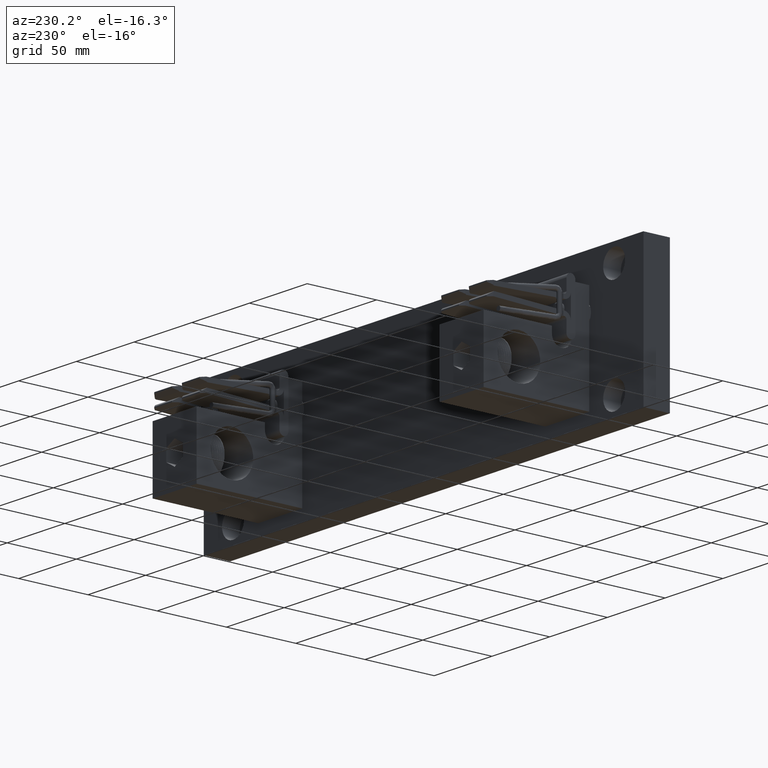
[diagram: clean part render]
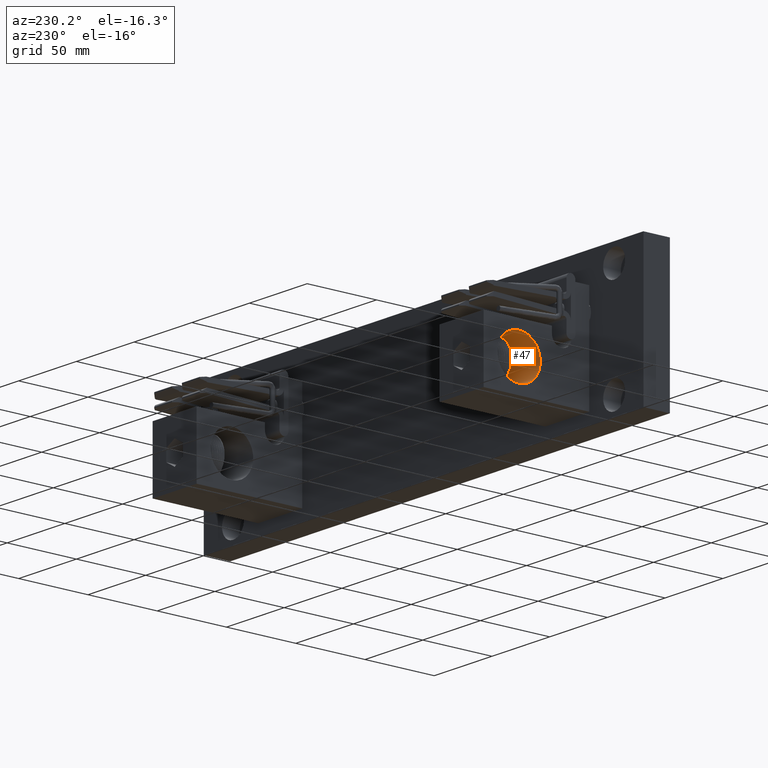
[diagram: same view with one face highlighted and labeled with its STEP entity id]
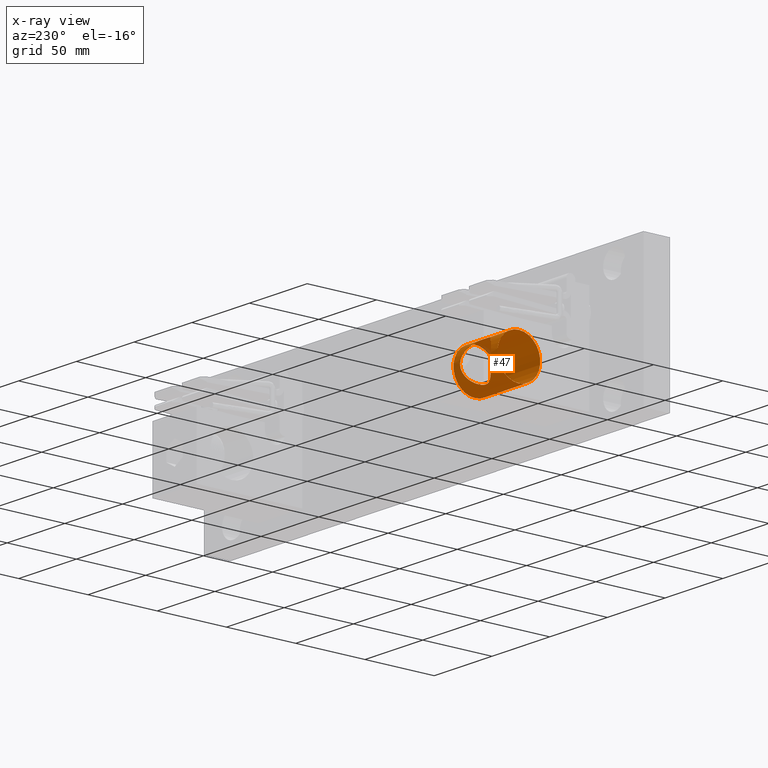
[diagram: x-ray of the same camera — body ghosted, the highlighted face saturated]
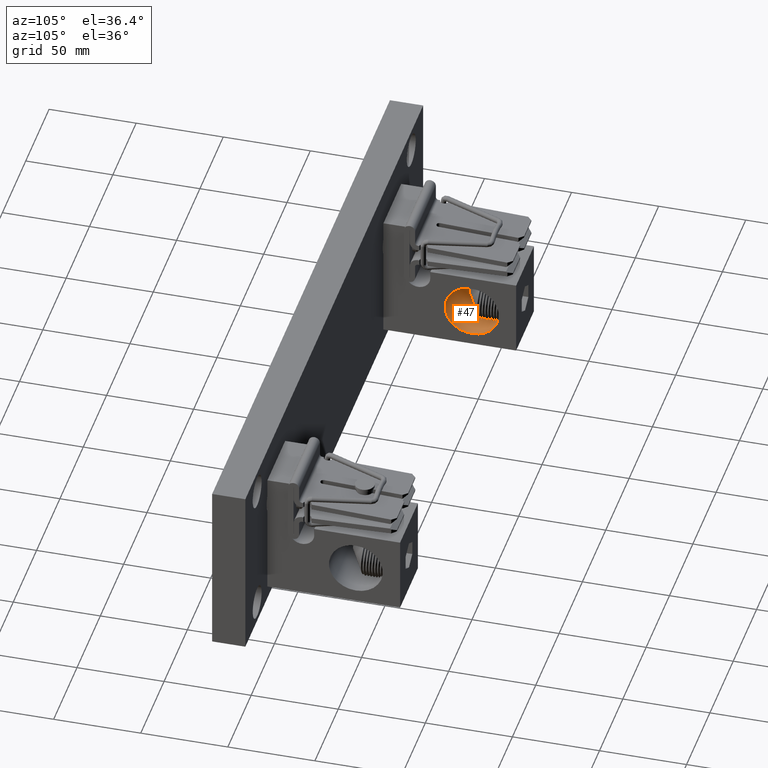
[diagram: same view with one face highlighted and labeled with its STEP entity id]
A machine part, auxiliary view. The second image highlights one B-rep face of the part: STEP entity #47.
The next image is the same camera in x-ray: the body ghosted, the highlighted face saturated — about 1% of this face is hidden behind the body in this view.
A second angle (auxiliary view) of the same face is appended — the face is thin or edge-on in the first view.
In plain terms, the highlighted cylindrical surface (bore or boss wall) has radius 15.4686 mm, axis along (-1, -0, 0).
Its self-contained STEP definition (entity closure, byte-faithful):
#23 = CARTESIAN_POINT ( 'NONE',  ( -0.5083903760251994300, 2.096102412120274900, -1.500965891169425200 ) ) ;
#47 = ADVANCED_FACE ( 'NONE', ( #27451, #10602, #15514 ), #7689, .F. ) ;
#120 = CARTESIAN_POINT ( 'NONE',  ( -0.3040232202170619600, 1.934990048804267700, -1.801411328152655400 ) ) ;
#1238 = CARTESIAN_POINT ( 'NONE',  ( 0.03703607803150976700, 1.812950835973183800, -1.897452140939298100 ) ) ;
#1339 = CARTESIAN_POINT ( 'NONE',  ( 0.4089202243638875900, 2.013861333578022900, -1.702193664357926700 ) ) ;
#1431 = CARTESIAN_POINT ( 'NONE',  ( 0.5184589148340126300, 2.104714970127614700, -1.302303516476783300 ) ) ;
#1526 = CARTESIAN_POINT ( 'NONE',  ( 0.3422328782772948200, 1.962364658960770400, -0.9776191655282175900 ) ) ;
#1574 = DIRECTION ( 'NONE',  ( 2.242896546522384600E-016, 0.0000000000000000000, 1.000000000000000000 ) ) ;
#1618 = CARTESIAN_POINT ( 'NONE',  ( 0.03693958694551607200, 1.813306831308582100, -0.8527732884213822300 ) ) ;
#2108 = CARTESIAN_POINT ( 'NONE',  ( -0.2352788112888216100, 1.889356783935037100, -0.9062514264342225200 ) ) ;
#2195 = CARTESIAN_POINT ( 'NONE',  ( -0.4920812681368250700, 2.082251220991547100, -1.195631627133866500 ) ) ;
#2224 = CARTESIAN_POINT ( 'NONE',  ( 0.7499999999999993300, 1.499999999999999800, -1.375000000000000000 ) ) ;
#2293 = CARTESIAN_POINT ( 'NONE',  ( -0.4926919576583562700, 2.082767437310098800, -1.552705597392537000 ) ) ;
#2387 = CARTESIAN_POINT ( 'NONE',  ( -0.2359406998527561500, 1.889766126412529800, -1.843407341791487800 ) ) ;
#2843 = EDGE_CURVE ( 'NONE', #3895, #3895, #17731, .T. ) ;
#3508 = CARTESIAN_POINT ( 'NONE',  ( 0.09082710076918358600, 1.823825352755908500, -1.890813781242951300 ) ) ;
#3611 = CARTESIAN_POINT ( 'NONE',  ( 0.4477203328357768400, 2.045168269973868000, -1.648230773953768700 ) ) ;
#3706 = CARTESIAN_POINT ( 'NONE',  ( 0.5139214688143697300, 2.100828939997650300, -1.275165215486350600 ) ) ;
#3809 = CARTESIAN_POINT ( 'NONE',  ( 0.2773335335710179200, 1.916772626162445400, -0.9307649896137126800 ) ) ;
#3895 = VERTEX_POINT ( 'NONE', #20763 ) ;
#3906 = CARTESIAN_POINT ( 'NONE',  ( 0.009280635462770615900, 1.811260116634076700, -0.8515516837321172000 ) ) ;
#4434 = CARTESIAN_POINT ( 'NONE',  ( -0.3032884347808445500, 1.934477017025518800, -0.9480676338777428400 ) ) ;
#4526 = CARTESIAN_POINT ( 'NONE',  ( -0.5029367590460089900, 2.091460013751301500, -1.229616698176384700 ) ) ;
#4546 = DIRECTION ( 'NONE',  ( 2.242896546522383700E-016, 0.0000000000000000000, 1.000000000000000000 ) ) ;
#4618 = CARTESIAN_POINT ( 'NONE',  ( -0.4723362692807457900, 2.065657171131666500, -1.601282302107387900 ) ) ;
#4716 = CARTESIAN_POINT ( 'NONE',  ( -0.1751735993493179800, 1.856871451396173500, -1.868563828384568200 ) ) ;
#5825 = CARTESIAN_POINT ( 'NONE',  ( 0.1746726631392333800, 1.856022455920142100, -1.869542607008252800 ) ) ;
#5934 = CARTESIAN_POINT ( 'NONE',  ( 0.4930602189450356000, 2.083034517968976200, -1.554258277017967100 ) ) ;
#6036 = CARTESIAN_POINT ( 'NONE',  ( 0.5036200801718395700, 2.092035339655246200, -1.231176567592089800 ) ) ;
#6135 = CARTESIAN_POINT ( 'NONE',  ( 0.2350590817488683000, 1.889885770684363000, -0.9070169607372483600 ) ) ;
#6344 = EDGE_CURVE ( 'NONE', #11674, #11674, #26585, .T. ) ;
#6632 = CARTESIAN_POINT ( 'NONE',  ( -0.03656245611827512600, 1.812883834307803300, -0.8525075735982081700 ) ) ;
#6722 = CARTESIAN_POINT ( 'NONE',  ( -0.3412959797015970300, 1.961832882506711300, -0.9777884892052065600 ) ) ;
#6814 = CARTESIAN_POINT ( 'NONE',  ( -0.5098203397965033200, 2.097324770169593800, -1.255977167398702600 ) ) ;
#6892 = CARTESIAN_POINT ( 'NONE',  ( -0.4478014841724760600, 2.045330027291613300, -1.646601566682454900 ) ) ;
#6975 = AXIS2_PLACEMENT_3D ( 'NONE', #25291, #12138, #1574 ) ;
#6997 = CARTESIAN_POINT ( 'NONE',  ( -0.1258925378133687900, 1.835360832578287100, -1.883389140935380200 ) ) ;
#7689 = CYLINDRICAL_SURFACE ( 'NONE', #6975, 0.6089999999999996500 ) ;
#8124 = CARTESIAN_POINT ( 'NONE',  ( 0.2348784388870535900, 1.889776289595449700, -1.843074547681420800 ) ) ;
#8224 = CARTESIAN_POINT ( 'NONE',  ( 0.5155723889209008500, 2.102239204130067900, -1.467272621108469000 ) ) ;
#8319 = CARTESIAN_POINT ( 'NONE',  ( 0.4862946632064189500, 2.077363659359441800, -1.180511642204474400 ) ) ;
#8410 = CARTESIAN_POINT ( 'NONE',  ( 0.1903033337549837100, 1.864606734211519100, -0.8870929829268110500 ) ) ;
#8819 = CARTESIAN_POINT ( 'NONE',  ( 0.7499999999999995600, 1.499999999999999800, -0.7660000000000000100 ) ) ;
#8890 = CARTESIAN_POINT ( 'NONE',  ( -0.07295248068231645300, 1.819577241989803300, -0.8565808280470914600 ) ) ;
#8984 = CARTESIAN_POINT ( 'NONE',  ( -0.3880447606537895100, 1.997227208084749500, -1.022210476329403300 ) ) ;
#9080 = CARTESIAN_POINT ( 'NONE',  ( -0.5233571344588245900, 2.108920179919665300, -1.336854587295536200 ) ) ;
#9164 = CARTESIAN_POINT ( 'NONE',  ( -0.4098673553824110400, 2.014533919914875500, -1.702311844670034500 ) ) ;
#9256 = CARTESIAN_POINT ( 'NONE',  ( -0.07386858460181419700, 1.819396299210058700, -1.893537500722199300 ) ) ;
#10279 = CARTESIAN_POINT ( 'NONE',  ( -3.905688928441876100E-016, 1.811257285055306400, -1.898449999999999100 ) ) ;
#10382 = CARTESIAN_POINT ( 'NONE',  ( 0.2770436544694636600, 1.916581669018506500, -1.819410341866391400 ) ) ;
#10471 = CARTESIAN_POINT ( 'NONE',  ( 0.5224405266412712700, 2.108131723077257400, -1.412344847179439100 ) ) ;
#10565 = CARTESIAN_POINT ( 'NONE',  ( 0.4482717581314562000, 2.045619674513943700, -1.102636943290465500 ) ) ;
#10602 = FACE_OUTER_BOUND ( 'NONE', #18936, .T. ) ;
#10657 = CARTESIAN_POINT ( 'NONE',  ( 0.1423994102623176700, 1.841980958967212900, -0.8710055826933943400 ) ) ;
#10905 = ORIENTED_EDGE ( 'NONE', *, *, #26926, .F. ) ;
#11145 = CARTESIAN_POINT ( 'NONE',  ( -0.09939845272249466000, 1.826642790545077300, -0.8609993639652568900 ) ) ;
#11199 = CIRCLE ( 'NONE', #20645, 0.6089999999999999900 ) ;
#11237 = CARTESIAN_POINT ( 'NONE',  ( -0.4378626741009095700, 2.037190139223975700, -1.087680303542284800 ) ) ;
#11349 = CARTESIAN_POINT ( 'NONE',  ( -0.5225462936828181300, 2.108222631414179200, -1.410843202185360700 ) ) ;
#11432 = CARTESIAN_POINT ( 'NONE',  ( -0.3540718204206856900, 1.971372496849789700, -1.760866404997214900 ) ) ;
#11528 = CARTESIAN_POINT ( 'NONE',  ( -0.01870363385725834100, 1.811257285055306400, -1.898449999999999100 ) ) ;
#11674 = VERTEX_POINT ( 'NONE', #23193 ) ;
#12138 = DIRECTION ( 'NONE',  ( -1.000000000000000000, -3.835122127709274900E-017, 2.220446049250313100E-016 ) ) ;
#12154 = ORIENTED_EDGE ( 'NONE', *, *, #6344, .F. ) ;
#12633 = CARTESIAN_POINT ( 'NONE',  ( 0.3415595500875298600, 1.961863544495721500, -1.772969530909885600 ) ) ;
#12735 = CARTESIAN_POINT ( 'NONE',  ( 0.5234741387460258900, 2.109020747822006700, -1.357376117934729900 ) ) ;
#12831 = CARTESIAN_POINT ( 'NONE',  ( 0.4091534278411433900, 2.014047426531655000, -1.048101674319964900 ) ) ;
#12923 = CARTESIAN_POINT ( 'NONE',  ( 0.09111046162193804600, 1.823910601698980300, -0.8592402125663728400 ) ) ;
#13403 = CARTESIAN_POINT ( 'NONE',  ( -0.1417343574007566600, 1.841703424372292100, -0.8708177935374330500 ) ) ;
#13503 = CARTESIAN_POINT ( 'NONE',  ( -0.4638829326624355800, 2.058610361940258500, -1.131876949619344600 ) ) ;
#13603 = CARTESIAN_POINT ( 'NONE',  ( -0.5158834393936390100, 2.102505630132347000, -1.465512193281020900 ) ) ;
#13692 = CARTESIAN_POINT ( 'NONE',  ( -0.3170306883267132700, 1.944202337401932600, -1.791834356217676400 ) ) ;
#14774 = CARTESIAN_POINT ( 'NONE',  ( 0.01870363385725822700, 1.811257285055306400, -1.898449999999999100 ) ) ;
#14879 = CARTESIAN_POINT ( 'NONE',  ( 0.3875304231437535800, 1.997008600644645000, -1.727266397812511600 ) ) ;
#14884 = EDGE_LOOP ( 'NONE', ( #28311 ) ) ;
#14964 = CARTESIAN_POINT ( 'NONE',  ( 0.5196674598685011600, 2.105751702514753200, -1.311511933876268000 ) ) ;
#15077 = CARTESIAN_POINT ( 'NONE',  ( 0.3767974445647151400, 1.988673276408671900, -1.011293620774445000 ) ) ;
#15171 = CARTESIAN_POINT ( 'NONE',  ( 0.04621392308839140900, 1.814542161335162700, -0.8535139619554498200 ) ) ;
#15514 = FACE_BOUND ( 'NONE', #25478, .T. ) ;
#15658 = CARTESIAN_POINT ( 'NONE',  ( -0.1898919553698512600, 1.864390483379950300, -0.8869310415257160000 ) ) ;
#15750 = CARTESIAN_POINT ( 'NONE',  ( -0.4857715369159185100, 2.076923159088707400, -1.179220980598102400 ) ) ;
#15836 = CARTESIAN_POINT ( 'NONE',  ( -0.5037465842656166900, 2.092142839192565600, -1.518401615495036400 ) ) ;
#15929 = CARTESIAN_POINT ( 'NONE',  ( -0.2640402914699639400, 1.907699496602451600, -1.828111436417920300 ) ) ;
#16979 = CARTESIAN_POINT ( 'NONE',  ( 0.07305722421871932400, 1.819223922460242000, -1.893642991505205100 ) ) ;
#17086 = CARTESIAN_POINT ( 'NONE',  ( 0.4190489050613412900, 2.021968911426762300, -1.689125898501507200 ) ) ;
#17178 = CARTESIAN_POINT ( 'NONE',  ( 0.5155863258658463000, 2.102253939916893800, -1.284142057762348400 ) ) ;
#17279 = CARTESIAN_POINT ( 'NONE',  ( 0.3174627381817808300, 1.944163742256490800, -0.9575646929766300500 ) ) ;
#17375 = CARTESIAN_POINT ( 'NONE',  ( 0.01848644800200861500, 1.811670316553645900, -0.8517949516583472900 ) ) ;
#17731 = CIRCLE ( 'NONE', #25003, 0.6089999999999994300 ) ;
#17888 = CARTESIAN_POINT ( 'NONE',  ( -0.2633885896852175000, 1.907278616284581200, -0.9215165681285743000 ) ) ;
#17991 = CARTESIAN_POINT ( 'NONE',  ( -0.5003702010452086800, 2.089278617203079500, -1.221023262503957900 ) ) ;
#18015 = DIRECTION ( 'NONE',  ( -1.000000000000000000, -3.835122127709274900E-017, 2.220446049250313100E-016 ) ) ;
#18089 = CARTESIAN_POINT ( 'NONE',  ( -0.4863753281593554100, 2.077431765507187200, -1.569278850323322800 ) ) ;
#18184 = CARTESIAN_POINT ( 'NONE',  ( -0.1907515635020198300, 1.864841591607055500, -1.862731617612933400 ) ) ;
#18936 = EDGE_LOOP ( 'NONE', ( #10905 ) ) ;
#19290 = CARTESIAN_POINT ( 'NONE',  ( 0.1428001413995403100, 1.840883814953337700, -1.879838675948487100 ) ) ;
#19380 = CARTESIAN_POINT ( 'NONE',  ( 0.4645816425765906800, 2.059157377002533100, -1.618733064573549400 ) ) ;
#19478 = CARTESIAN_POINT ( 'NONE',  ( 0.5082672052565104800, 2.095997328484608500, -1.248533475616815400 ) ) ;
#19570 = CARTESIAN_POINT ( 'NONE',  ( 0.2634710880194901000, 1.907645871427264400, -0.9224031786147306500 ) ) ;
#19670 = CARTESIAN_POINT ( 'NONE',  ( -0.01827489863148302700, 1.811251665810572800, -0.8515466586474904600 ) ) ;
#20143 = CARTESIAN_POINT ( 'NONE',  ( -0.3161990634051230500, 1.943608513559267300, -0.9575337350514681000 ) ) ;
#20230 = CARTESIAN_POINT ( 'NONE',  ( -0.5076586228163898500, 2.095480345256516500, -1.247076543476163000 ) ) ;
#20326 = CARTESIAN_POINT ( 'NONE',  ( -0.4646072678846222000, 2.059212466608186800, -1.616730566706452900 ) ) ;
#20424 = CARTESIAN_POINT ( 'NONE',  ( -0.1426586199132108000, 1.842086136445424600, -1.878924161717896200 ) ) ;
#20645 = AXIS2_PLACEMENT_3D ( 'NONE', #2224, #18015, #4546 ) ;
#20763 = CARTESIAN_POINT ( 'NONE',  ( -0.7500000000000003300, 1.499999999999999800, -0.7660000000000002400 ) ) ;
#21523 = CARTESIAN_POINT ( 'NONE',  ( 0.2200954348900350000, 1.881002868824170900, -1.850214329291777200 ) ) ;
#21613 = CARTESIAN_POINT ( 'NONE',  ( 0.5041322792164241200, 2.092464974105977300, -1.520490332487708200 ) ) ;
#21710 = CARTESIAN_POINT ( 'NONE',  ( 0.4926556490850096900, 2.082736858988501800, -1.197211428132991100 ) ) ;
#21808 = CARTESIAN_POINT ( 'NONE',  ( 0.2204593255690446300, 1.881215196476329700, -0.8999565262871620500 ) ) ;
#22145 = DIRECTION ( 'NONE',  ( 2.242896546522385600E-016, 0.0000000000000000000, 1.000000000000000000 ) ) ;
#22291 = CARTESIAN_POINT ( 'NONE',  ( -0.06387629217494839000, 1.817617496322947200, -0.8553813577399876900 ) ) ;
#22384 = CARTESIAN_POINT ( 'NONE',  ( -0.3533774199291424000, 1.970850787498546800, -0.9884975782354419300 ) ) ;
#22475 = CARTESIAN_POINT ( 'NONE',  ( -0.5194194631404780400, 2.105526011989683300, -1.300593678888185600 ) ) ;
#22573 = CARTESIAN_POINT ( 'NONE',  ( -0.4386773564534504100, 2.037854183421200700, -1.661082465344138300 ) ) ;
#22649 = CARTESIAN_POINT ( 'NONE',  ( -0.09152748140515258600, 1.824029685064319400, -1.890685146039455100 ) ) ;
#23193 = CARTESIAN_POINT ( 'NONE',  ( -4.192467347310681500E-016, 1.811257285055306100, -1.898449999999999300 ) ) ;
#23222 = DIRECTION ( 'NONE',  ( -1.000000000000000000, -3.835122127709274900E-017, 2.220446049250313100E-016 ) ) ;
#23331 = CARTESIAN_POINT ( 'NONE',  ( -0.7500000000000004400, 1.499999999999999800, -1.374999999999999800 ) ) ;
#23771 = CARTESIAN_POINT ( 'NONE',  ( 0.2633373834693014700, 1.907558894405745600, -1.827675475046669100 ) ) ;
#23859 = CARTESIAN_POINT ( 'NONE',  ( 0.5185266970952454600, 2.104772704688472100, -1.448951375156653200 ) ) ;
#23951 = CARTESIAN_POINT ( 'NONE',  ( 0.4651047142038102200, 2.059592964053454700, -1.132284568991641600 ) ) ;
#24053 = CARTESIAN_POINT ( 'NONE',  ( 0.1747491169685639600, 1.856666003614545900, -0.8812888386536237300 ) ) ;
#24553 = CARTESIAN_POINT ( 'NONE',  ( -0.09068725277655312300, 1.824085987010028800, -0.8593874279365514300 ) ) ;
#24656 = CARTESIAN_POINT ( 'NONE',  ( -0.4091883895427208500, 2.013994107817656400, -1.046868209804586300 ) ) ;
#24746 = CARTESIAN_POINT ( 'NONE',  ( -0.5234940248321872100, 2.109037840360608500, -1.392128149778473700 ) ) ;
#24848 = CARTESIAN_POINT ( 'NONE',  ( -0.3886793635102967500, 1.997723881484823300, -1.727090316491664900 ) ) ;
#24938 = CARTESIAN_POINT ( 'NONE',  ( -0.03731754264687819900, 1.812969690460925400, -1.897441488070289900 ) ) ;
#25003 = AXIS2_PLACEMENT_3D ( 'NONE', #23331, #23222, #22145 ) ;
#25291 = CARTESIAN_POINT ( 'NONE',  ( -0.7500000000000004400, 1.499999999999999800, -1.374999999999999800 ) ) ;
#25478 = EDGE_LOOP ( 'NONE', ( #12154 ) ) ;
#26063 = CARTESIAN_POINT ( 'NONE',  ( 0.3168163483163491900, 1.943709035272326700, -1.792902677304043500 ) ) ;
#26154 = CARTESIAN_POINT ( 'NONE',  ( 0.5234249173029851300, 2.108978440829739000, -1.394029742544431000 ) ) ;
#26255 = CARTESIAN_POINT ( 'NONE',  ( 0.4193911950025798200, 2.022243346142677600, -1.061323011078411800 ) ) ;
#26339 = CARTESIAN_POINT ( 'NONE',  ( 0.1255269944705859100, 1.835222296419632300, -0.8665196678240897300 ) ) ;
#26585 = B_SPLINE_CURVE_WITH_KNOTS ( 'NONE', 3,
 ( #10279, #14774, #1238, #16979, #3508, #19290, #5825, #21523, #8124, #23771, #10382, #26063, #12633, #28322, #14879, #1339, #17086, #3611, #19380, #5934, #21613, #8224, #23859, #10471, #26154, #12735, #28425, #14964, #1431, #17178, #3706, #19478, #6036, #21710, #8319, #23951, #10565, #26255, #12831, #28516, #15077, #1526, #17279, #3809, #19570, #6135, #21808, #8410, #24053, #10657, #26339, #12923, #28614, #15171, #1618, #17375, #3906, #19670, #6632, #22291, #8890, #24553, #11145, #26838, #13403, #29112, #15658, #2108, #17888, #4434, #20143, #6722, #22384, #8984, #24656, #11237, #26941, #13503, #29212, #15750, #2195, #17991, #4526, #20230, #6814, #22475, #9080, #24746, #11349, #27038, #13603, #23, #15836, #2293, #18089, #4618, #20326, #6892, #22573, #9164, #24848, #11432, #27133, #13692, #120, #15929, #2387, #18184, #4716, #20424, #6997, #22649, #9256, #24938, #11528, #27220 ),
 .UNSPECIFIED., .T., .F.,
 ( 4, 2, 2, 2, 2, 2, 2, 2, 2, 2, 2, 2, 2, 2, 2, 2, 2, 2, 2, 2, 2, 2, 2, 2, 2, 2, 2, 2, 2, 2, 2, 2, 2, 2, 2, 2, 2, 2, 2, 2, 2, 2, 2, 2, 2, 2, 2, 2, 2, 2, 2, 2, 2, 2, 2, 2, 2, 4 ),
 ( 0.0000000000000000000, 0.001400456203850392500, 0.002800912407700785000, 0.005601824815401559700, 0.007002281019251957600, 0.008402737223102354700, 0.01120364963080314900, 0.01260410583465355000, 0.01400456203850395500, 0.01680547444620475500, 0.01960638685390555400, 0.02100684305775595400, 0.02240729926160635000, 0.02380775546545674600, 0.02450798356738194100, 0.02520821166930713500, 0.02660866787315751400, 0.02800912407700788600, 0.03081003648470862600, 0.03221049268855899500, 0.03361094889240936300, 0.03641186130011010000, 0.03781231750396046200, 0.03921277370781082300, 0.04061322991166118500, 0.04201368611551155300, 0.04341414231936192200, 0.04411437042128710200, 0.04481459852321227600, 0.04621505472706264500, 0.04691528282898783900, 0.04761551093091302700, 0.04901596713476339500, 0.05041642333861376400, 0.05321733574631452200, 0.05461779195016489000, 0.05601824815401527200, 0.05881916056171602300, 0.06021961676556640600, 0.06162007296941678800, 0.06302052917326717000, 0.06372075727519235800, 0.06442098537711753200, 0.06722189778481819900, 0.06862235398866853300, 0.07002281019251886700, 0.07142326639636920000, 0.07282372260021953400, 0.07422417880406985400, 0.07562463500792020200, 0.07842554741562086900, 0.07982600361947121700, 0.08122645982332155100, 0.08402737223102226000, 0.08542782843487259400, 0.08682828463872292700, 0.08822874084257328900, 0.08962919704642362300 ),
 .UNSPECIFIED. ) ;
#26838 = CARTESIAN_POINT ( 'NONE',  ( -0.1251243667335852100, 1.835074104484780000, -0.8664225621004157900 ) ) ;
#26926 = EDGE_CURVE ( 'NONE', #28838, #28838, #11199, .T. ) ;
#26941 = CARTESIAN_POINT ( 'NONE',  ( -0.4469083702465827000, 2.044596412628637300, -1.101926564006237700 ) ) ;
#27038 = CARTESIAN_POINT ( 'NONE',  ( -0.5187330097881345200, 2.104949647298513400, -1.447494335921459600 ) ) ;
#27133 = CARTESIAN_POINT ( 'NONE',  ( -0.3420593208552417700, 1.962397921920482100, -1.771553601522374100 ) ) ;
#27220 = CARTESIAN_POINT ( 'NONE',  ( -3.905688928441876100E-016, 1.811257285055306400, -1.898449999999999100 ) ) ;
#27451 = FACE_OUTER_BOUND ( 'NONE', #14884, .T. ) ;
#28311 = ORIENTED_EDGE ( 'NONE', *, *, #2843, .T. ) ;
#28322 = CARTESIAN_POINT ( 'NONE',  ( 0.3763039907615033400, 1.988292195777869200, -1.739219579181464600 ) ) ;
#28425 = CARTESIAN_POINT ( 'NONE',  ( 0.5225390049689050400, 2.108216363005187300, -1.339037598365024000 ) ) ;
#28516 = CARTESIAN_POINT ( 'NONE',  ( 0.3878798259103492500, 1.997281598853106300, -1.023121777459409700 ) ) ;
#28614 = CARTESIAN_POINT ( 'NONE',  ( 0.07347597614236325800, 1.819311141131618100, -0.8564103436430550200 ) ) ;
#28838 = VERTEX_POINT ( 'NONE', #8819 ) ;
#29112 = CARTESIAN_POINT ( 'NONE',  ( -0.1741176505250774900, 1.856355943382901800, -0.8810654201648821000 ) ) ;
#29212 = CARTESIAN_POINT ( 'NONE',  ( -0.4716791261570282300, 2.065108435140989900, -1.147355073714865700 ) ) ;